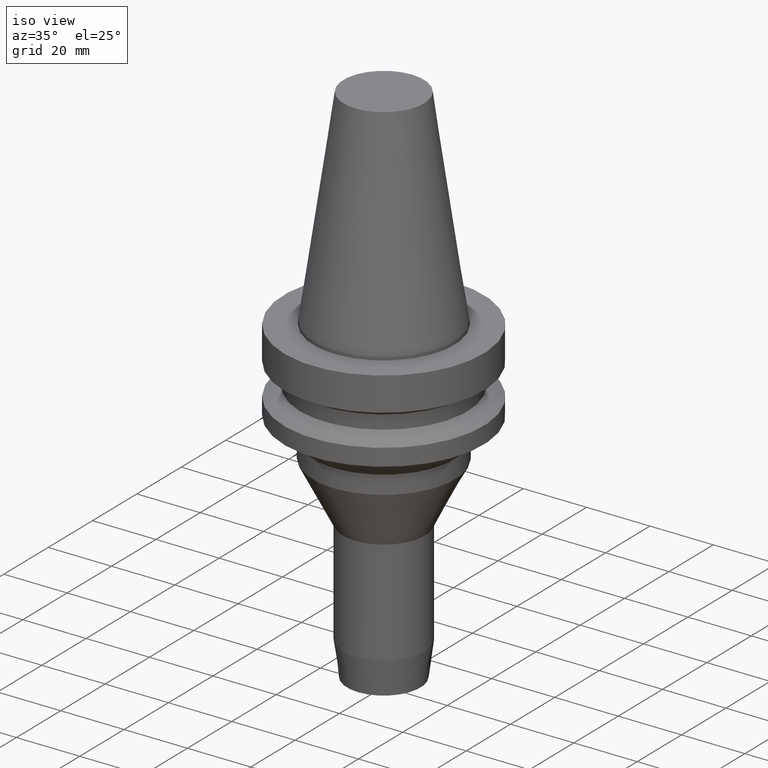
[diagram: clean part render]
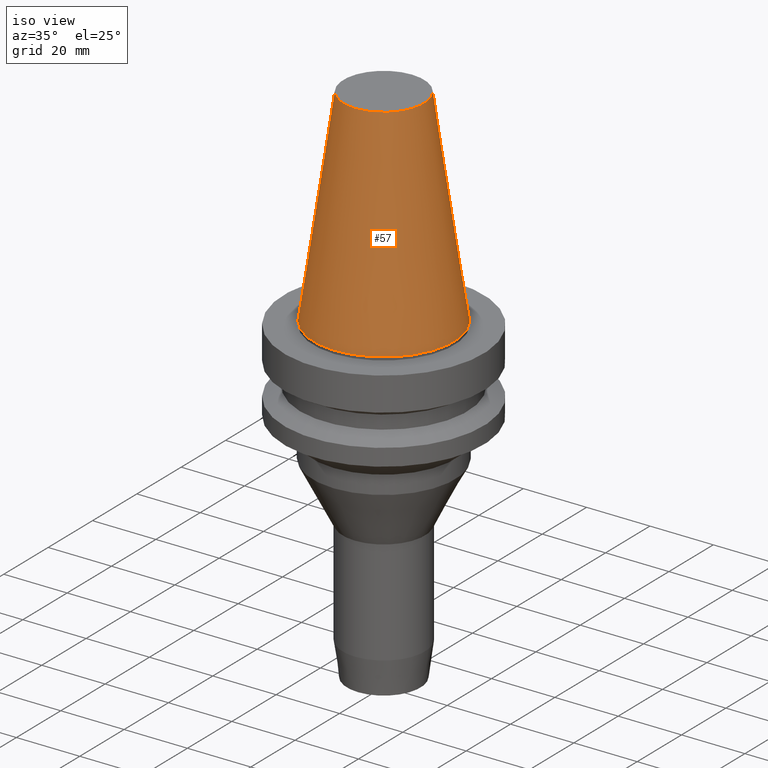
[diagram: tour spotlight — one face highlighted and labeled with its STEP entity id]
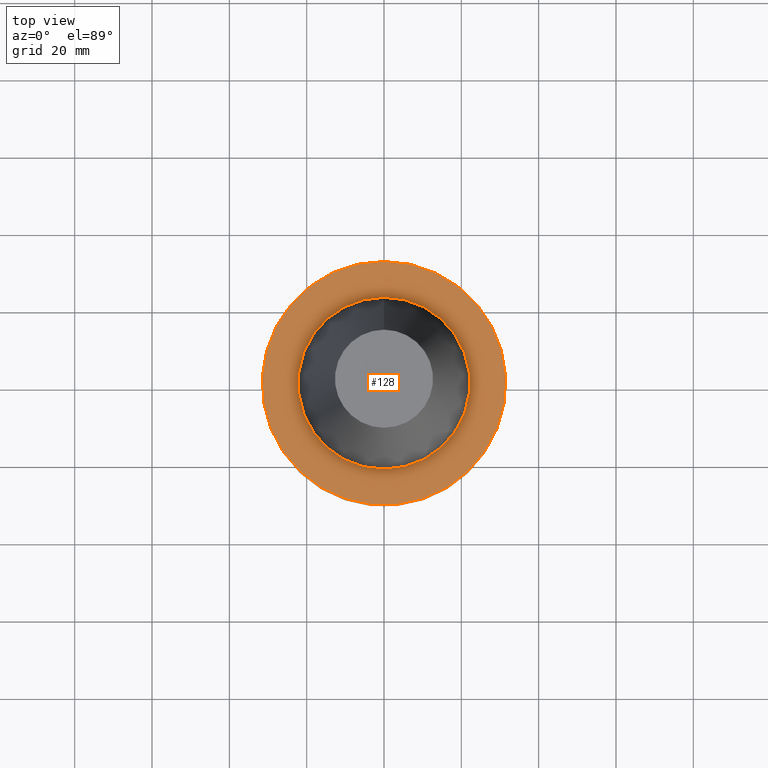
[diagram: tour spotlight — one face highlighted and labeled with its STEP entity id]
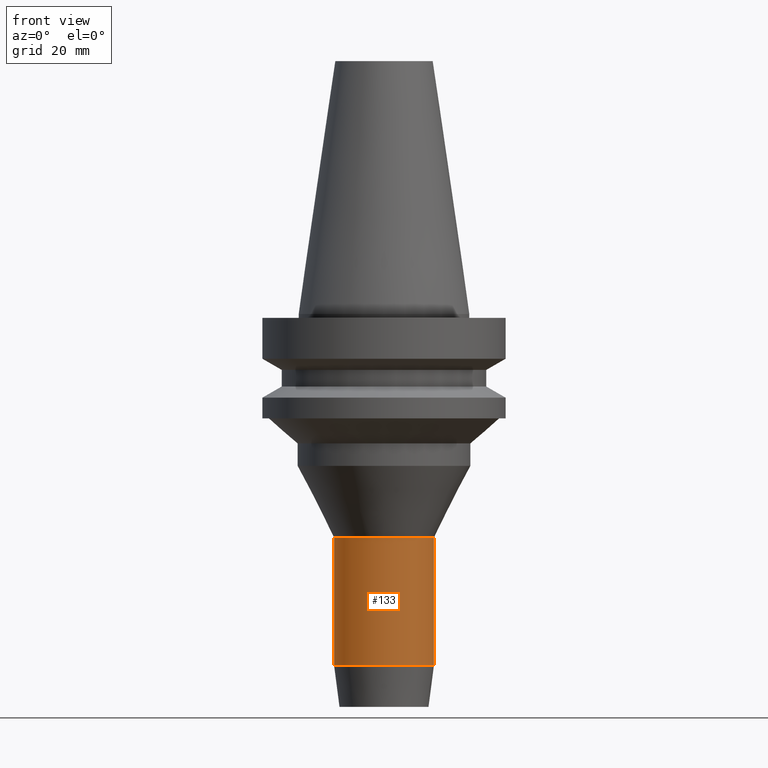
[diagram: tour spotlight — one face highlighted and labeled with its STEP entity id]
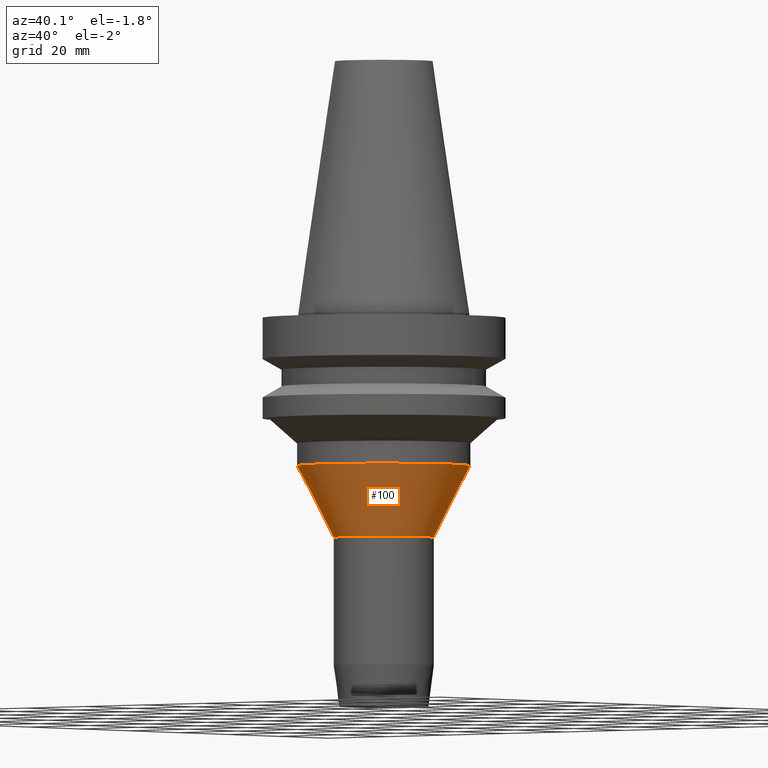
[diagram: tour spotlight — one face highlighted and labeled with its STEP entity id]
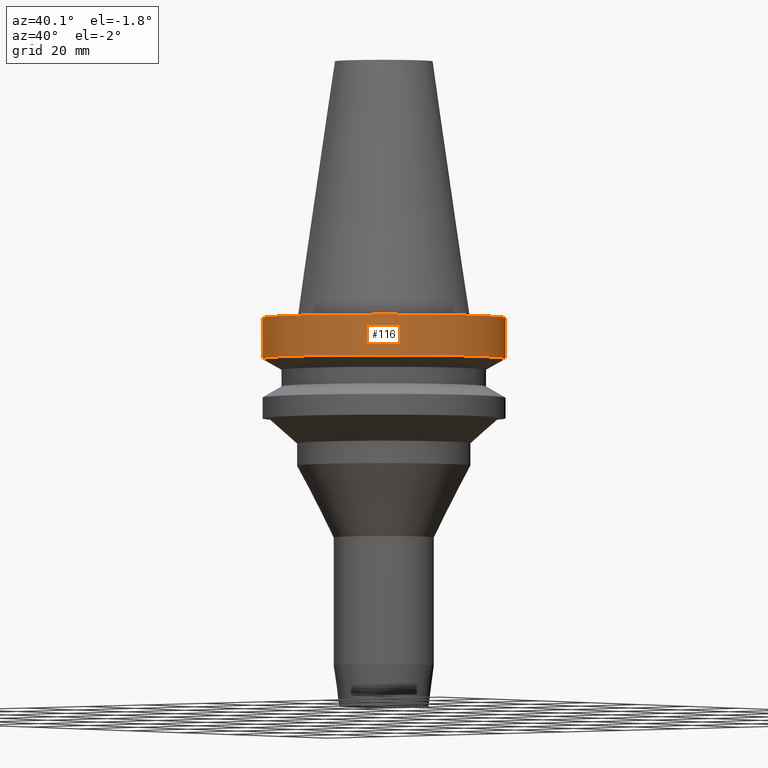
[diagram: tour spotlight — one face highlighted and labeled with its STEP entity id]
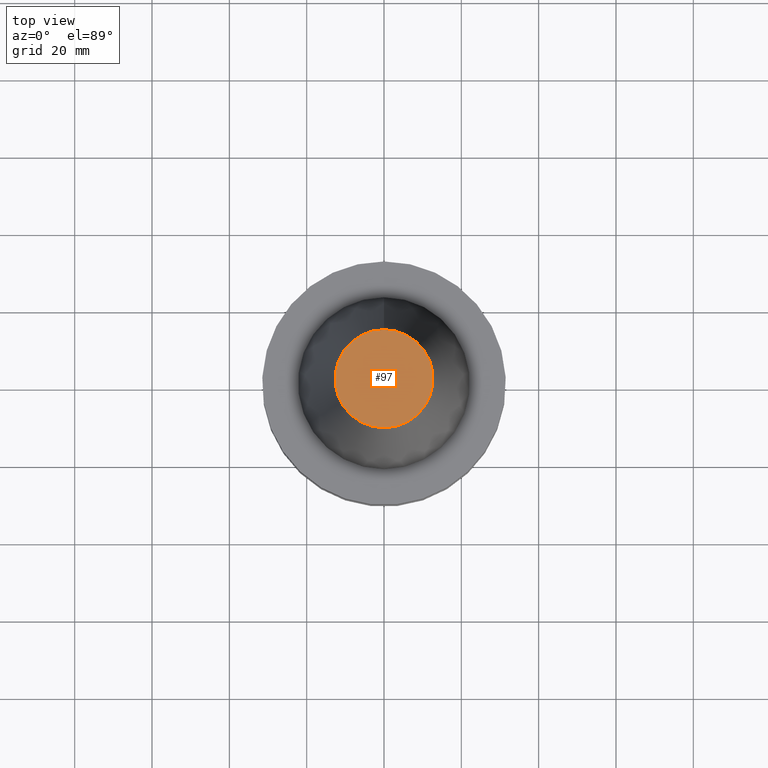
[diagram: tour spotlight — one face highlighted and labeled with its STEP entity id]
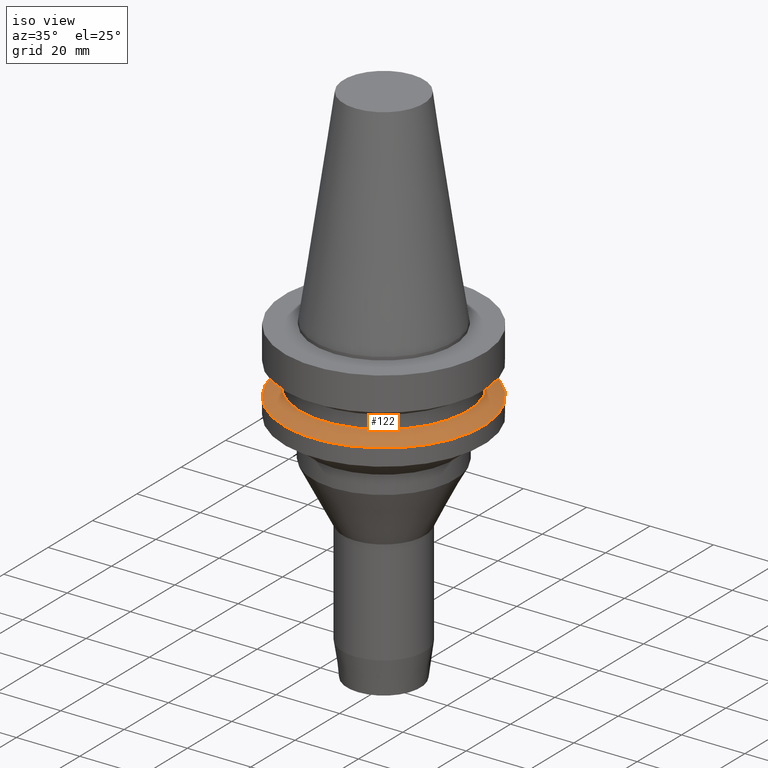
[diagram: tour spotlight — one face highlighted and labeled with its STEP entity id]
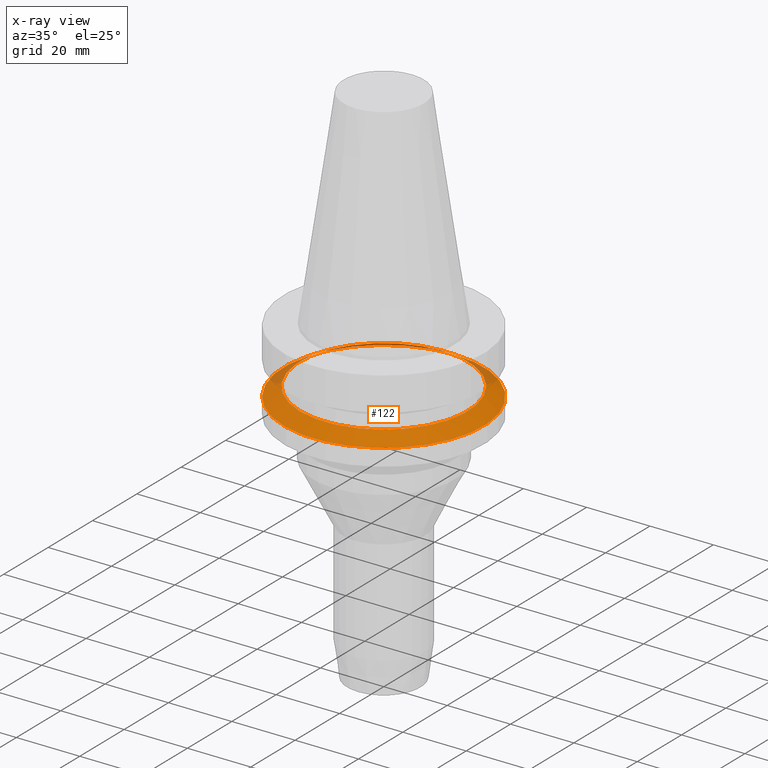
[diagram: x-ray of the same camera — body ghosted, this tour face saturated]
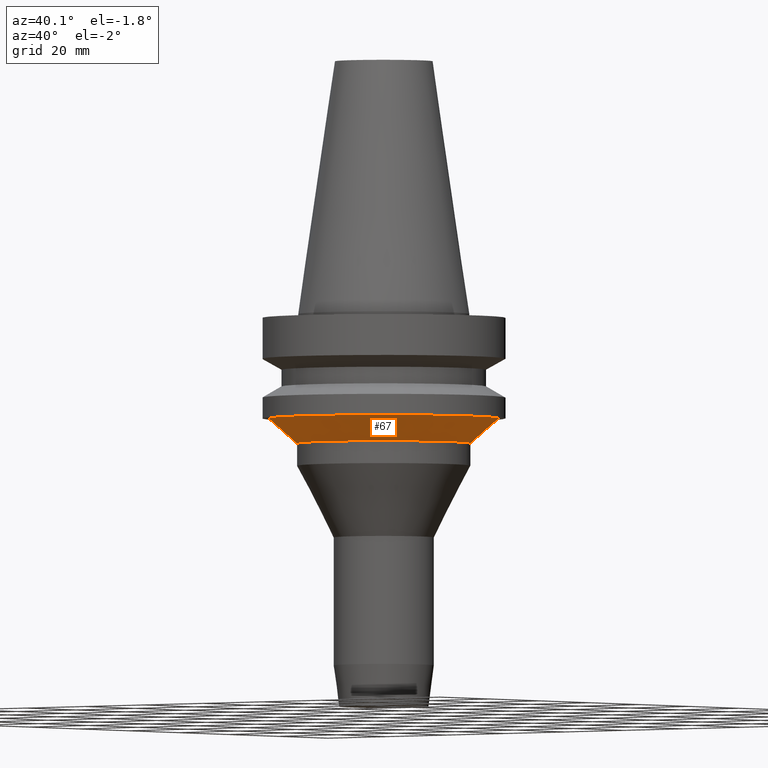
[diagram: tour spotlight — one face highlighted and labeled with its STEP entity id]
A machine part: a face-by-face anatomy tour. The part has 16 B-rep faces; the first image is the clean iso view, then the 8 largest visible faces are spotlighted one at a time (largest first), each with its STEP entity span.

Face 1 — iso view, entity #57. In plain terms, the highlighted conical surface has half-angle 8.297 deg.
Definition (entity closure, byte-faithful):
#57=ADVANCED_FACE('Unnamed[1]',(#154,#155),#156,.T.);
#74=EDGE_CURVE('Unnamed[1]',#182,#182,#183,.T.);
#104=EDGE_CURVE('Unnamed[1]',#229,#229,#230,.T.);
#154=FACE_BOUND('',#287,.T.);
#155=FACE_BOUND('',#288,.T.);
#156=CONICAL_SURFACE('',#289,17.4562500000001,0.144812498238936);
#182=VERTEX_POINT('',#322);
#183=CIRCLE('',#323,22.225);
#229=VERTEX_POINT('',#381);
#230=CIRCLE('',#382,12.6875000000001);
#287=EDGE_LOOP('',(#443));
#288=EDGE_LOOP('',(#444));
#289=AXIS2_PLACEMENT_3D('',#445,#446,#447);
#322=CARTESIAN_POINT('',(1.71319921032766E-029,22.2250000000001,-2.8153873565375E-013));
#323=AXIS2_PLACEMENT_3D('',#475,#476,#477);
#381=CARTESIAN_POINT('',(-4.00459503321185E-015,12.6875000000002,65.4000000000001));
#382=AXIS2_PLACEMENT_3D('',#528,#529,#530);
#443=ORIENTED_EDGE('',*,*,#74,.F.);
#444=ORIENTED_EDGE('',*,*,#104,.T.);
#445=CARTESIAN_POINT('',(-2.00229751660592E-015,5.83366963864905E-014,32.6999999999999));
#446=DIRECTION('',(6.12323399573677E-017,-5.58802637008037E-016,-1.0));
#447=DIRECTION('',(2.93896403075806E-032,1.0,-5.58802637008037E-016));
#475=CARTESIAN_POINT('',(1.65331138531142E-029,4.00638501563276E-014,-2.70006239588838E-013));
#476=DIRECTION('',(6.12323399573677E-017,-5.58802637008037E-016,-1.0));
#477=DIRECTION('',(2.93896403075806E-032,1.0,-5.58802637008037E-016));
#528=CARTESIAN_POINT('',(-4.00459503321185E-015,7.66095426166535E-014,65.4000000000001));
#529=DIRECTION('',(6.12323399573677E-017,-5.58802637008037E-016,-1.0));
#530=DIRECTION('',(2.93896403075806E-032,1.0,-5.58802637008037E-016));

Face 2 — top view, entity #128. In plain terms, the highlighted planar face has unit normal (-0, -0, 1).
Definition (entity closure, byte-faithful):
#79=EDGE_CURVE('Unnamed[1]',#190,#190,#191,.T.);
#128=ADVANCED_FACE('Unnamed[1]',(#264,#265),#266,.T.);
#135=EDGE_CURVE('Unnamed[1]',#276,#276,#277,.T.);
#190=VERTEX_POINT('',#332);
#191=CIRCLE('',#333,22.225);
#264=FACE_OUTER_BOUND('',#424,.T.);
#265=FACE_BOUND('',#425,.T.);
#266=PLANE('',#426);
#276=VERTEX_POINT('',#439);
#277=CIRCLE('',#440,31.4999999999997);
#332=CARTESIAN_POINT('',(6.12323399573622E-017,22.2250000000001,-0.999999999999912));
#333=AXIS2_PLACEMENT_3D('',#484,#485,#486);
#424=EDGE_LOOP('',(#565));
#425=EDGE_LOOP('',(#566));
#426=AXIS2_PLACEMENT_3D('',#567,#568,#569);
#439=CARTESIAN_POINT('',(6.12323399573568E-017,31.4999999999997,-0.999999999999825));
#440=AXIS2_PLACEMENT_3D('',#579,#580,#581);
#484=CARTESIAN_POINT('',(6.12323399573616E-017,3.95050475193198E-014,-0.999999999999901));
#485=DIRECTION('',(6.12323399573677E-017,-5.58802637008037E-016,-1.0));
#486=DIRECTION('',(2.93896403075806E-032,1.0,-5.58802637008037E-016));
#565=ORIENTED_EDGE('',*,*,#135,.F.);
#566=ORIENTED_EDGE('',*,*,#79,.T.);
#567=CARTESIAN_POINT('',(6.12323399573595E-017,26.8624999999999,-0.999999999999869));
#568=DIRECTION('',(-6.12323399573677E-017,-9.35138060429241E-015,1.0));
#569=DIRECTION('',(5.77434068963536E-031,-1.0,-9.35138060429241E-015));
#579=CARTESIAN_POINT('',(6.12323399573555E-017,3.95050475193198E-014,-0.999999999999801));
#580=DIRECTION('',(6.12323399573677E-017,-5.58802637008037E-016,-1.0));
#581=DIRECTION('',(2.93896403075806E-032,1.0,-5.58802637008037E-016));

Face 3 — front view, entity #133. In plain terms, the highlighted cylindrical surface (bore or boss wall) has radius 13 mm, axis along (0, -0, -1).
Definition (entity closure, byte-faithful):
#69=EDGE_CURVE('Unnamed[1]',#174,#174,#175,.T.);
#110=EDGE_CURVE('Unnamed[1]',#238,#238,#239,.T.);
#133=ADVANCED_FACE('Unnamed[1]',(#272,#273),#274,.T.);
#174=VERTEX_POINT('',#312);
#175=CIRCLE('',#313,13.0000000000003);
#238=VERTEX_POINT('',#393);
#239=CIRCLE('',#394,12.9999999999976);
#272=FACE_BOUND('',#434,.T.);
#273=FACE_BOUND('',#435,.T.);
#274=CYLINDRICAL_SURFACE('',#436,12.999999999999);
#312=CARTESIAN_POINT('',(5.56812429463614E-015,13.0000000000003,-90.9343706040449));
#313=AXIS2_PLACEMENT_3D('',#466,#467,#468);
#393=CARTESIAN_POINT('',(3.54057115273627E-015,12.9999999999976,-57.8219149423548));
#394=AXIS2_PLACEMENT_3D('',#537,#538,#539);
#434=EDGE_LOOP('',(#574));
#435=EDGE_LOOP('',(#575));
#436=AXIS2_PLACEMENT_3D('',#576,#577,#578);
#466=CARTESIAN_POINT('',(5.56812429463614E-015,-1.07505159318787E-014,-90.9343706040449));
#467=DIRECTION('',(6.12323399573677E-017,-5.58802637008037E-016,-1.0));
#468=DIRECTION('',(2.93896403075806E-032,1.0,-5.58802637008037E-016));
#537=CARTESIAN_POINT('',(3.54057115273627E-015,7.75281160968547E-015,-57.8219149423548));
#538=DIRECTION('',(6.12323399573677E-017,-5.58802637008037E-016,-1.0));
#539=DIRECTION('',(2.93896403075806E-032,1.0,-5.58802637008037E-016));
#574=ORIENTED_EDGE('',*,*,#69,.F.);
#575=ORIENTED_EDGE('',*,*,#110,.T.);
#576=CARTESIAN_POINT('',(4.5543477236862E-015,-1.4988521610966E-015,-74.3781427731998));
#577=DIRECTION('',(6.12323399573677E-017,-5.58802637008037E-016,-1.0));
#578=DIRECTION('',(2.93896403075806E-032,1.0,-5.58802637008037E-016));

Face 4 — auxiliary view, entity #100. In plain terms, the highlighted conical surface has half-angle 27.116 deg.
Definition (entity closure, byte-faithful):
#64=EDGE_CURVE('Unnamed[1]',#166,#166,#167,.T.);
#100=ADVANCED_FACE('Unnamed[1]',(#222,#223),#224,.T.);
#110=EDGE_CURVE('Unnamed[1]',#238,#238,#239,.T.);
#166=VERTEX_POINT('',#302);
#167=CIRCLE('',#303,22.5000000000004);
#222=FACE_BOUND('',#372,.T.);
#223=FACE_BOUND('',#373,.T.);
#224=CONICAL_SURFACE('',#374,17.749999999999,0.473260842442208);
#238=VERTEX_POINT('',#393);
#239=CIRCLE('',#394,12.9999999999976);
#302=CARTESIAN_POINT('',(2.40459052004988E-015,22.5000000000005,-39.2699433293591));
#303=AXIS2_PLACEMENT_3D('',#457,#458,#459);
#372=EDGE_LOOP('',(#520));
#373=EDGE_LOOP('',(#521));
#374=AXIS2_PLACEMENT_3D('',#522,#523,#524);
#393=CARTESIAN_POINT('',(3.54057115273627E-015,12.9999999999976,-57.8219149423548));
#394=AXIS2_PLACEMENT_3D('',#537,#538,#539);
#457=CARTESIAN_POINT('',(2.40459052004988E-015,1.81197022687258E-014,-39.269943329359));
#458=DIRECTION('',(6.12323399573677E-017,-5.58802637008037E-016,-1.0));
#459=DIRECTION('',(2.93896403075806E-032,1.0,-5.58802637008037E-016));
#520=ORIENTED_EDGE('',*,*,#110,.F.);
#521=ORIENTED_EDGE('',*,*,#64,.T.);
#522=CARTESIAN_POINT('',(2.97258083639307E-015,1.29362569392056E-014,-48.5459291358569));
#523=DIRECTION('',(-6.12323399573677E-017,5.58802637008037E-016,1.0));
#524=DIRECTION('',(2.93896403075806E-032,1.0,-5.58802637008037E-016));
#537=CARTESIAN_POINT('',(3.54057115273627E-015,7.75281160968547E-015,-57.8219149423548));
#538=DIRECTION('',(6.12323399573677E-017,-5.58802637008037E-016,-1.0));
#539=DIRECTION('',(2.93896403075806E-032,1.0,-5.58802637008037E-016));

Face 5 — auxiliary view, entity #116. In plain terms, the highlighted cylindrical surface (bore or boss wall) has radius 31.5 mm, axis along (0, -0, -1).
Definition (entity closure, byte-faithful):
#102=EDGE_CURVE('Unnamed[1]',#226,#226,#227,.T.);
#116=ADVANCED_FACE('Unnamed[1]',(#247,#248),#249,.T.);
#135=EDGE_CURVE('Unnamed[1]',#276,#276,#277,.T.);
#226=VERTEX_POINT('',#377);
#227=CIRCLE('',#378,31.5000000000003);
#247=FACE_BOUND('',#404,.T.);
#248=FACE_BOUND('',#405,.T.);
#249=CYLINDRICAL_SURFACE('',#406,31.5);
#276=VERTEX_POINT('',#439);
#277=CIRCLE('',#440,31.4999999999997);
#377=CARTESIAN_POINT('',(7.08182973902924E-016,31.5000000000004,-11.5655056526664));
#378=AXIS2_PLACEMENT_3D('',#525,#526,#527);
#404=EDGE_LOOP('',(#547));
#405=EDGE_LOOP('',(#548));
#406=AXIS2_PLACEMENT_3D('',#549,#550,#551);
#439=CARTESIAN_POINT('',(6.12323399573568E-017,31.4999999999997,-0.999999999999825));
#440=AXIS2_PLACEMENT_3D('',#579,#580,#581);
#525=CARTESIAN_POINT('',(7.08182973902922E-016,3.36010150992865E-014,-11.5655056526663));
#526=DIRECTION('',(6.12323399573677E-017,-5.58802637008037E-016,-1.0));
#527=DIRECTION('',(2.93896403075806E-032,1.0,-5.58802637008037E-016));
#547=ORIENTED_EDGE('',*,*,#102,.F.);
#548=ORIENTED_EDGE('',*,*,#135,.T.);
#549=CARTESIAN_POINT('',(3.84707656930139E-016,3.65530313093032E-014,-6.28275282633307));
#550=DIRECTION('',(6.12323399573677E-017,-5.58802637008037E-016,-1.0));
#551=DIRECTION('',(2.93896403075806E-032,1.0,-5.58802637008037E-016));
#579=CARTESIAN_POINT('',(6.12323399573555E-017,3.95050475193198E-014,-0.999999999999801));
#580=DIRECTION('',(6.12323399573677E-017,-5.58802637008037E-016,-1.0));
#581=DIRECTION('',(2.93896403075806E-032,1.0,-5.58802637008037E-016));

Face 6 — top view, entity #97. In plain terms, the highlighted planar face has unit normal (-0, 0, 1).
Definition (entity closure, byte-faithful):
#97=ADVANCED_FACE('Unnamed[1]',(#218),#219,.T.);
#104=EDGE_CURVE('Unnamed[1]',#229,#229,#230,.T.);
#218=FACE_OUTER_BOUND('',#367,.T.);
#219=PLANE('',#368);
#229=VERTEX_POINT('',#381);
#230=CIRCLE('',#382,12.6875000000001);
#367=EDGE_LOOP('',(#515));
#368=AXIS2_PLACEMENT_3D('',#516,#517,#518);
#381=CARTESIAN_POINT('',(-4.00459503321185E-015,12.6875000000002,65.4000000000001));
#382=AXIS2_PLACEMENT_3D('',#528,#529,#530);
#515=ORIENTED_EDGE('',*,*,#104,.F.);
#516=CARTESIAN_POINT('',(-4.00459503321185E-015,6.34375000000014,65.4000000000001));
#517=DIRECTION('',(-6.12323399573677E-017,9.97602686800683E-016,1.0));
#518=DIRECTION('',(-5.62583941297938E-032,-1.0,9.97602686800683E-016));
#528=CARTESIAN_POINT('',(-4.00459503321185E-015,7.66095426166535E-014,65.4000000000001));
#529=DIRECTION('',(6.12323399573677E-017,-5.58802637008037E-016,-1.0));
#530=DIRECTION('',(2.93896403075806E-032,1.0,-5.58802637008037E-016));

Face 7 — iso view, entity #122. An x-ray twin of the same camera follows (body ghosted, this face saturated) — the face is partly hidden behind the body. In plain terms, the highlighted conical surface has half-angle 60 deg.
Definition (entity closure, byte-faithful):
#88=EDGE_CURVE('Unnamed[1]',#204,#204,#205,.T.);
#106=EDGE_CURVE('Unnamed[1]',#232,#232,#233,.T.);
#122=ADVANCED_FACE('Unnamed[1]',(#256,#257),#258,.T.);
#204=VERTEX_POINT('',#350);
#205=CIRCLE('',#351,31.5000000000007);
#232=VERTEX_POINT('',#385);
#233=CIRCLE('',#386,26.5);
#256=FACE_BOUND('',#415,.T.);
#257=FACE_BOUND('',#416,.T.);
#258=CONICAL_SURFACE('',#417,29.0000000000003,1.04719755119651);
#350=CARTESIAN_POINT('',(1.32473071268174E-015,31.5000000000007,-21.6344943473346));
#351=AXIS2_PLACEMENT_3D('',#499,#500,#501);
#385=CARTESIAN_POINT('',(1.1479681728942E-015,26.5,-18.7477430013855));
#386=AXIS2_PLACEMENT_3D('',#531,#532,#533);
#415=EDGE_LOOP('',(#558));
#416=EDGE_LOOP('',(#559));
#417=AXIS2_PLACEMENT_3D('',#560,#561,#562);
#499=CARTESIAN_POINT('',(1.32473071268174E-015,2.79744376647017E-014,-21.6344943473346));
#500=DIRECTION('',(6.12323399573677E-017,-5.58802637008037E-016,-1.0));
#501=DIRECTION('',(2.93896403075806E-032,1.0,-5.58802637008037E-016));
#531=CARTESIAN_POINT('',(1.1479681728942E-015,2.95875619292046E-014,-18.7477430013855));
#532=DIRECTION('',(6.12323399573677E-017,-5.58802637008037E-016,-1.0));
#533=DIRECTION('',(2.93896403075806E-032,1.0,-5.58802637008037E-016));
#558=ORIENTED_EDGE('',*,*,#88,.F.);
#559=ORIENTED_EDGE('',*,*,#106,.T.);
#560=CARTESIAN_POINT('',(1.23634944278797E-015,2.87809997969531E-014,-20.1911186743601));
#561=DIRECTION('',(6.12323399573677E-017,-5.58802637008037E-016,-1.0));
#562=DIRECTION('',(2.93896403075806E-032,1.0,-5.58802637008037E-016));

Face 8 — auxiliary view, entity #67. In plain terms, the highlighted conical surface has half-angle 48.293 deg.
Definition (entity closure, byte-faithful):
#67=ADVANCED_FACE('Unnamed[1]',(#170,#171),#172,.T.);
#108=EDGE_CURVE('Unnamed[1]',#235,#235,#236,.T.);
#130=EDGE_CURVE('Unnamed[1]',#268,#268,#269,.T.);
#170=FACE_BOUND('',#307,.T.);
#171=FACE_BOUND('',#308,.T.);
#172=CONICAL_SURFACE('',#309,26.126119515502,0.842867621947714);
#235=VERTEX_POINT('',#389);
#236=CIRCLE('',#390,29.7522390310041);
#268=VERTEX_POINT('',#429);
#269=CIRCLE('',#430,22.4999999999998);
#307=EDGE_LOOP('',(#461));
#308=EDGE_LOOP('',(#462));
#309=AXIS2_PLACEMENT_3D('',#463,#464,#465);
#389=CARTESIAN_POINT('',(1.65327317884891E-015,29.7522390310041,-26.9999999999998));
#390=AXIS2_PLACEMENT_3D('',#534,#535,#536);
#429=CARTESIAN_POINT('',(2.04902721681725E-015,22.4999999999998,-33.4631539190542));
#430=AXIS2_PLACEMENT_3D('',#570,#571,#572);
#461=ORIENTED_EDGE('',*,*,#130,.F.);
#462=ORIENTED_EDGE('',*,*,#108,.T.);
#463=CARTESIAN_POINT('',(1.85115019783308E-015,2.31703652304327E-014,-30.231576959527));
#464=DIRECTION('',(-6.12323399573677E-017,5.58802637008037E-016,1.0));
#465=DIRECTION('',(2.93896403075806E-032,1.0,-5.58802637008037E-016));
#534=CARTESIAN_POINT('',(1.65327317884891E-015,2.49761789571109E-014,-26.9999999999998));
#535=DIRECTION('',(6.12323399573677E-017,-5.58802637008037E-016,-1.0));
#536=DIRECTION('',(2.93896403075806E-032,1.0,-5.58802637008037E-016));
#570=CARTESIAN_POINT('',(2.04902721681725E-015,2.13645515037544E-014,-33.4631539190542));
#571=DIRECTION('',(6.12323399573677E-017,-5.58802637008037E-016,-1.0));
#572=DIRECTION('',(2.93896403075806E-032,1.0,-5.58802637008037E-016));